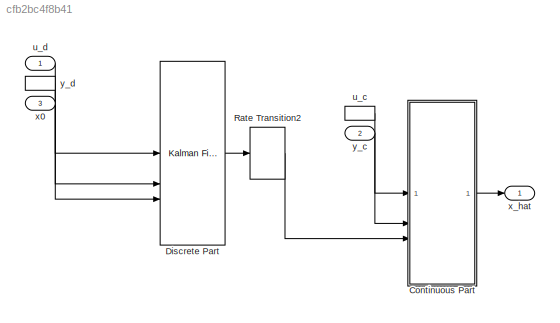
MODEL mdl_cfb2bc4f8b41
KIND model
CONFIG AbsTol = auto
CONFIG EnableMultiTasking = off
CONFIG FixedStep = auto
CONFIG MaxStep = auto
CONFIG MinStep = auto
CONFIG RelTol = 1e-3
CONFIG SampleTimeConstraint = Unconstrained
CONFIG SolverName = VariableStepAuto
CONFIG StartTime = 0.0
CONFIG StopTime = 10.0
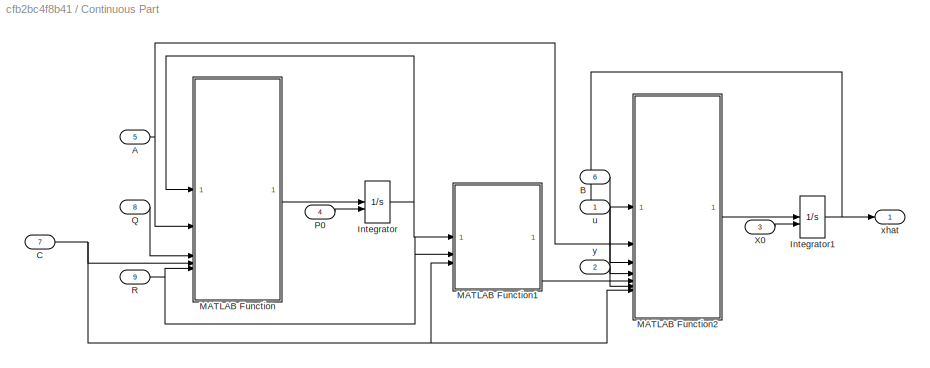
BLOCK [SubSystem] Continuous Part
BLOCK [Inport] Continuous Part/A
  Port = 5
BLOCK [Inport] Continuous Part/B
  Port = 6
BLOCK [Inport] Continuous Part/C
  Port = 7
BLOCK [Integrator] Continuous Part/Integrator
  InitialConditionSource = external
BLOCK [Integrator] Continuous Part/Integrator1
  InitialConditionSource = external
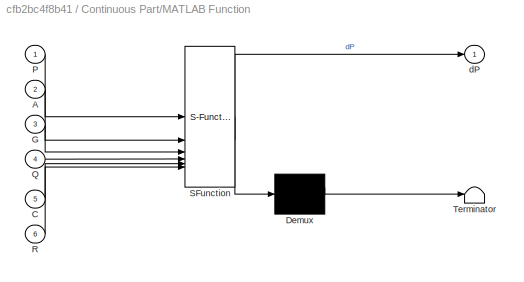
BLOCK [SubSystem] Continuous Part/MATLAB Function
  ErrorFcn = Stateflow.Translate.translate
  PermitHierarchicalResolution = ExplicitOnly
  SFBlockType = MATLAB Function
  TreatAsAtomicUnit = on
BLOCK [Demux] Continuous Part/MATLAB Function/ Demux 
  Outputs = 1
BLOCK [S-Function] Continuous Part/MATLAB Function/ SFunction 
  EnableBusSupport = off
  FunctionName = sf_sfun
  PortCounts = [6 2]
  SFcnIsStateOwnerBlock = off
  SFunctionDeploymentMode = off
  Tag = Stateflow S-Function 3
BLOCK [Terminator] Continuous Part/MATLAB Function/ Terminator 
BLOCK [Inport] Continuous Part/MATLAB Function/A
  Port = 2
BLOCK [Inport] Continuous Part/MATLAB Function/C
  Port = 5
BLOCK [Inport] Continuous Part/MATLAB Function/G
  Port = 3
BLOCK [Inport] Continuous Part/MATLAB Function/P
BLOCK [Inport] Continuous Part/MATLAB Function/Q
  Port = 4
BLOCK [Inport] Continuous Part/MATLAB Function/R
  Port = 6
BLOCK [Outport] Continuous Part/MATLAB Function/dP
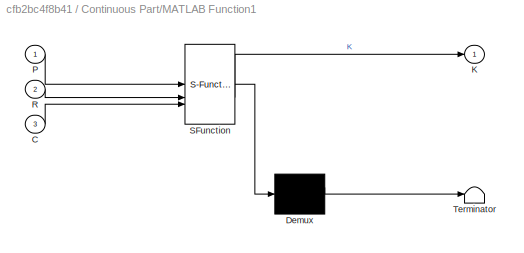
BLOCK [SubSystem] Continuous Part/MATLAB Function1
  ErrorFcn = Stateflow.Translate.translate
  PermitHierarchicalResolution = ExplicitOnly
  SFBlockType = MATLAB Function
  TreatAsAtomicUnit = on
BLOCK [Demux] Continuous Part/MATLAB Function1/ Demux 
  Outputs = 1
BLOCK [S-Function] Continuous Part/MATLAB Function1/ SFunction 
  EnableBusSupport = off
  FunctionName = sf_sfun
  PortCounts = [3 2]
  SFcnIsStateOwnerBlock = off
  SFunctionDeploymentMode = off
  Tag = Stateflow S-Function 4
BLOCK [Terminator] Continuous Part/MATLAB Function1/ Terminator 
BLOCK [Inport] Continuous Part/MATLAB Function1/C
  Port = 3
BLOCK [Outport] Continuous Part/MATLAB Function1/K
BLOCK [Inport] Continuous Part/MATLAB Function1/P
BLOCK [Inport] Continuous Part/MATLAB Function1/R
  Port = 2
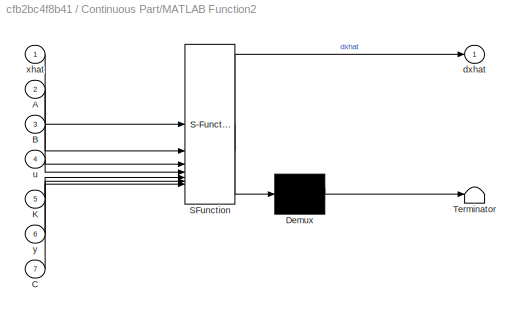
BLOCK [SubSystem] Continuous Part/MATLAB Function2
  ErrorFcn = Stateflow.Translate.translate
  PermitHierarchicalResolution = ExplicitOnly
  SFBlockType = MATLAB Function
  TreatAsAtomicUnit = on
BLOCK [Demux] Continuous Part/MATLAB Function2/ Demux 
  Outputs = 1
BLOCK [S-Function] Continuous Part/MATLAB Function2/ SFunction 
  EnableBusSupport = off
  FunctionName = sf_sfun
  PortCounts = [7 2]
  SFcnIsStateOwnerBlock = off
  SFunctionDeploymentMode = off
  Tag = Stateflow S-Function 5
BLOCK [Terminator] Continuous Part/MATLAB Function2/ Terminator 
BLOCK [Inport] Continuous Part/MATLAB Function2/A
  Port = 2
BLOCK [Inport] Continuous Part/MATLAB Function2/B
  Port = 3
BLOCK [Inport] Continuous Part/MATLAB Function2/C
  Port = 7
BLOCK [Inport] Continuous Part/MATLAB Function2/K
  Port = 5
BLOCK [Outport] Continuous Part/MATLAB Function2/dxhat
BLOCK [Inport] Continuous Part/MATLAB Function2/u
  Port = 4
BLOCK [Inport] Continuous Part/MATLAB Function2/xhat
BLOCK [Inport] Continuous Part/MATLAB Function2/y
  Port = 6
BLOCK [Inport] Continuous Part/P0
  Port = 4
BLOCK [Inport] Continuous Part/Q
  Port = 8
BLOCK [Inport] Continuous Part/R
  Port = 9
BLOCK [Inport] Continuous Part/X0
  Port = 3
BLOCK [Inport] Continuous Part/u
BLOCK [Outport] Continuous Part/xhat
  NameLocation = right
BLOCK [Inport] Continuous Part/y
  Port = 2
BLOCK [Reference] Discrete Part  REF=ctrlSharedLib/Kalman Filter
  LibrarySourceBlock = cstblocks/State Estimation/Kalman Filter
  SourceBlock = ctrlSharedLib/Kalman Filter
  SourceType = ctrlKalmanFilter
BLOCK [RateTransition] Rate Transition2
BLOCK [InportShadow] u_c
  NameLocation = left
BLOCK [Inport] u_d
  NameLocation = left
BLOCK [Inport] x0
  NameLocation = left
  Port = 3
BLOCK [Outport] x_hat
BLOCK [Inport] y_c
  NameLocation = left
  Port = 2
BLOCK [InportShadow] y_d
  NameLocation = left
  Port = 2
NET Continuous Part/A:1 -> Continuous Part/MATLAB Function2:2, Continuous Part/MATLAB Function:2
LINE Continuous Part/B:1 -> Continuous Part/MATLAB Function2:3
NET Continuous Part/C:1 -> Continuous Part/MATLAB Function1:3, Continuous Part/MATLAB Function2:7, Continuous Part/MATLAB Function:5
NET Continuous Part/Integrator1:1 -> Continuous Part/MATLAB Function2:1, Continuous Part/xhat:1
NET Continuous Part/Integrator:1 -> Continuous Part/MATLAB Function1:1, Continuous Part/MATLAB Function:1
LINE Continuous Part/MATLAB Function1:1 -> Continuous Part/MATLAB Function2:5
LINE Continuous Part/MATLAB Function2:1 -> Continuous Part/Integrator1:1
LINE Continuous Part/MATLAB Function:1 -> Continuous Part/Integrator:1
LINE Continuous Part/P0:1 -> Continuous Part/Integrator:2
LINE Continuous Part/Q:1 -> Continuous Part/MATLAB Function:4
NET Continuous Part/R:1 -> Continuous Part/MATLAB Function1:2, Continuous Part/MATLAB Function:6
LINE Continuous Part/X0:1 -> Continuous Part/Integrator1:2
LINE Continuous Part/u:1 -> Continuous Part/MATLAB Function2:4
LINE Continuous Part/y:1 -> Continuous Part/MATLAB Function2:6
LINE Continuous Part:1 -> x_hat:1
LINE Discrete Part:1 -> Rate Transition2:1
LINE Rate Transition2:1 -> Continuous Part:3
LINE u_c:1 -> Continuous Part:1
LINE u_d:1 -> Discrete Part:1
LINE x0:1 -> Discrete Part:3
LINE y_c:1 -> Continuous Part:2
LINE y_d:1 -> Discrete Part:2
note: NET lines group one-source signal fan-out (src -> all destinations, sorted); 1:1 wires keep LINE
CHART Continuous Part/MATLAB Function states=1 transitions=1
  STATE_LABEL 'eML_blk_kernel()'
  STATE_LABEL "SCRIPT:\nfunction dP = DerivativeP(P,A,G,Q,C,R)\nG = eye(length(Q));\ndP = A*P + P*A' + G*Q*G' - P*C'*inv(R)*C*P;"
CHART Continuous Part/MATLAB Function1 states=1 transitions=1
  STATE_LABEL 'eML_blk_kernel()'
  STATE_LABEL "SCRIPT:\nfunction K = FilterGain(P,R,C)\nK = P*C'*inv(R);"
CHART Continuous Part/MATLAB Function2 states=1 transitions=1
  STATE_LABEL 'eML_blk_kernel()'
  STATE_LABEL 'SCRIPT:\nfunction dxhat = DerivativeXHAT(xhat, A, B, u, K, y, C)\ndxhat = A*xhat + B*u + K*(y - C*xhat);'
CHART  states=0 transitions=0
CHART  states=0 transitions=0
CHART  states=0 transitions=0
